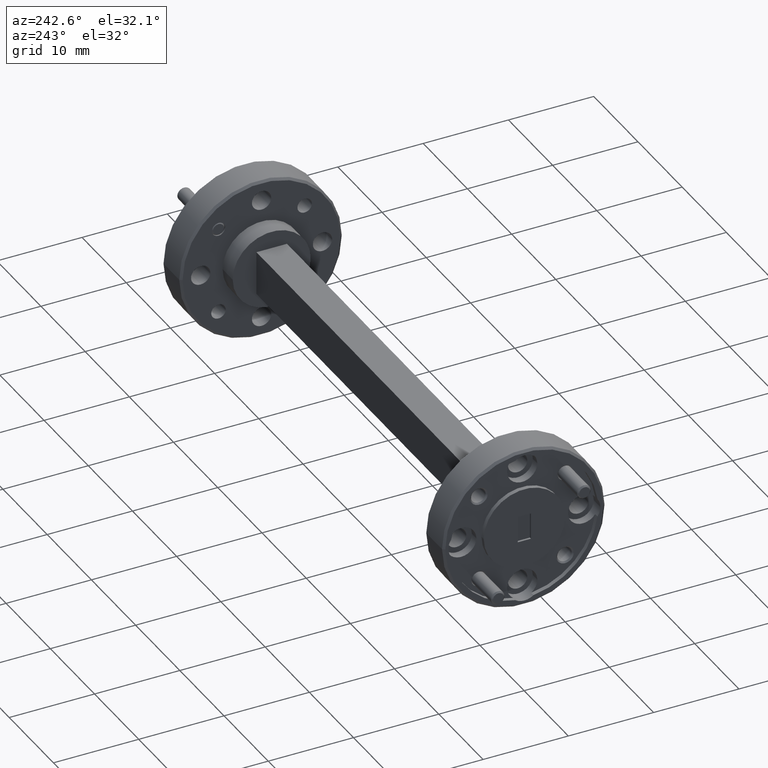
[diagram: clean part render]
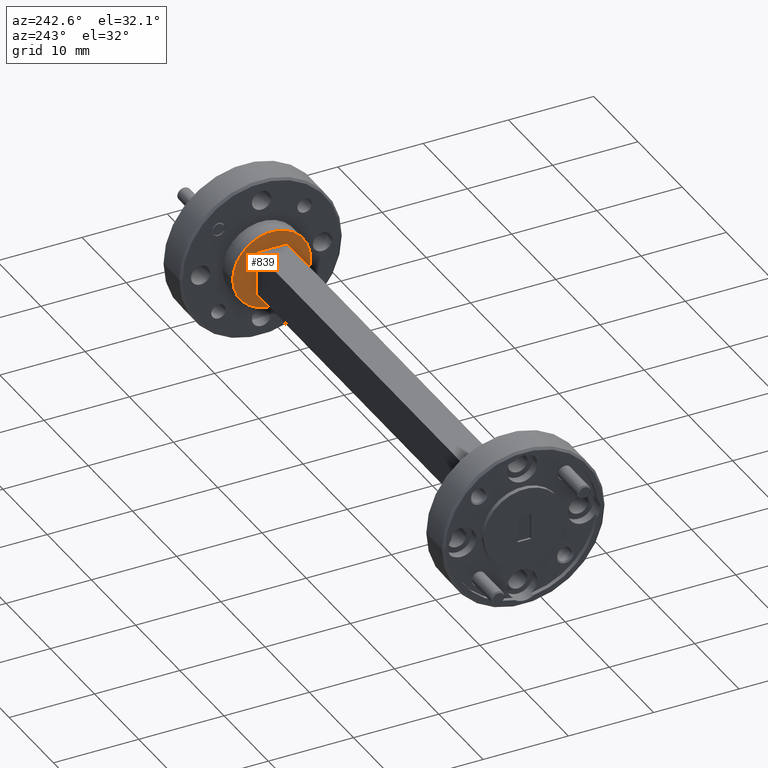
[diagram: same view with one face highlighted and labeled with its STEP entity id]
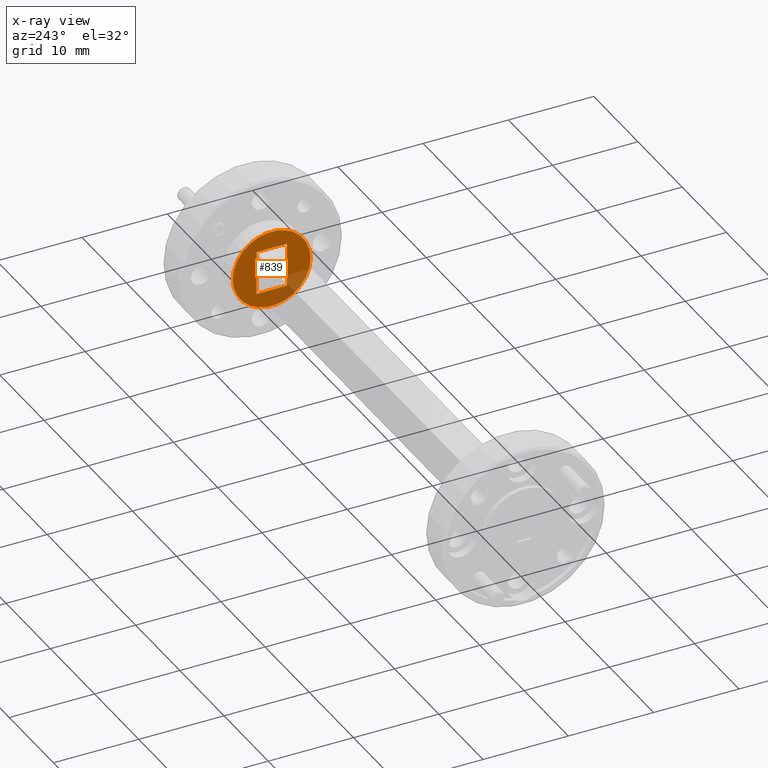
[diagram: x-ray of the same camera — body ghosted, the highlighted face saturated]
A machine part, auxiliary view. The second image highlights one B-rep face of the part: STEP entity #839.
The next image is the same camera in x-ray: the body ghosted, the highlighted face saturated — about 13% of this face is hidden behind the body in this view.
In plain terms, the highlighted planar face has unit normal (1, 0, -0).
Its self-contained STEP definition (entity closure, byte-faithful):
#75 = FACE_OUTER_BOUND ( 'NONE', #2577, .T. ) ;
#97 = DIRECTION ( 'NONE',  ( 0.000000000000000000, 0.000000000000000000, -1.000000000000000000 ) ) ;
#463 = VERTEX_POINT ( 'NONE', #4271 ) ;
#683 = CARTESIAN_POINT ( 'NONE',  ( 1.591945884671743139, 1.715015889200941057, 2.704611598569149677 ) ) ;
#795 = VERTEX_POINT ( 'NONE', #2943 ) ;
#839 = ADVANCED_FACE ( 'NONE', ( #3456, #75 ), #2901, .F. ) ;
#997 = CARTESIAN_POINT ( 'NONE',  ( 1.591945884671743139, 2.019515889200941050, 2.783611598569149415 ) ) ;
#1102 = CARTESIAN_POINT ( 'NONE',  ( 1.591945884671743139, 2.160515889200941064, 2.985611598569148928 ) ) ;
#1179 = LINE ( 'NONE', #6971, #1616 ) ;
#1509 = DIRECTION ( 'NONE',  ( 0.000000000000000000, 0.000000000000000000, -1.000000000000000000 ) ) ;
#1541 = CARTESIAN_POINT ( 'NONE',  ( 1.591945884671743139, 2.019515889200941050, 3.114611598569149375 ) ) ;
#1548 = DIRECTION ( 'NONE',  ( -0.000000000000000000, 1.000000000000000000, -0.000000000000000000 ) ) ;
#1616 = VECTOR ( 'NONE', #97, 39.37007874015748143 ) ;
#1648 = CARTESIAN_POINT ( 'NONE',  ( 1.591945884671743139, 1.715015889200941057, 2.985611598569148928 ) ) ;
#1714 = ORIENTED_EDGE ( 'NONE', *, *, #5889, .T. ) ;
#1880 = DIRECTION ( 'NONE',  ( 0.000000000000000000, 0.000000000000000000, -1.000000000000000000 ) ) ;
#2115 = AXIS2_PLACEMENT_3D ( 'NONE', #3621, #2530, #1880 ) ;
#2124 = CARTESIAN_POINT ( 'NONE',  ( 1.591945884671743139, 1.715015889200941057, 2.783611598569149415 ) ) ;
#2303 = DIRECTION ( 'NONE',  ( -0.000000000000000000, 0.000000000000000000, -1.000000000000000000 ) ) ;
#2375 = ORIENTED_EDGE ( 'NONE', *, *, #4557, .T. ) ;
#2523 = DIRECTION ( 'NONE',  ( -1.000000000000000000, -0.000000000000000000, 0.000000000000000000 ) ) ;
#2530 = DIRECTION ( 'NONE',  ( -1.000000000000000000, -0.000000000000000000, 0.000000000000000000 ) ) ;
#2577 = EDGE_LOOP ( 'NONE', ( #1714, #3345 ) ) ;
#2808 = EDGE_CURVE ( 'NONE', #6247, #463, #5039, .T. ) ;
#2901 = PLANE ( 'NONE',  #3499 ) ;
#2943 = CARTESIAN_POINT ( 'NONE',  ( 1.591945884671743139, 2.019515889200941050, 2.985611598569148928 ) ) ;
#3034 = ORIENTED_EDGE ( 'NONE', *, *, #4956, .F. ) ;
#3177 = VERTEX_POINT ( 'NONE', #3771 ) ;
#3246 = EDGE_CURVE ( 'NONE', #795, #3944, #5008, .T. ) ;
#3345 = ORIENTED_EDGE ( 'NONE', *, *, #2808, .T. ) ;
#3375 = EDGE_CURVE ( 'NONE', #795, #4988, #6840, .T. ) ;
#3456 = FACE_BOUND ( 'NONE', #5131, .T. ) ;
#3499 = AXIS2_PLACEMENT_3D ( 'NONE', #683, #5220, #2303 ) ;
#3621 = CARTESIAN_POINT ( 'NONE',  ( 1.591945884671743139, 2.090015889200941057, 2.884611598569149393 ) ) ;
#3652 = CARTESIAN_POINT ( 'NONE',  ( 1.591945884671743139, 2.090015889200941057, 2.884611598569149393 ) ) ;
#3656 = CIRCLE ( 'NONE', #7282, 0.1799999999999997158 ) ;
#3771 = CARTESIAN_POINT ( 'NONE',  ( 1.591945884671743139, 2.160515889200941064, 2.783611598569149415 ) ) ;
#3777 = ORIENTED_EDGE ( 'NONE', *, *, #3246, .T. ) ;
#3923 = CARTESIAN_POINT ( 'NONE',  ( 1.591945884671743139, 1.910015889200941563, 2.884611598569149393 ) ) ;
#3931 = DIRECTION ( 'NONE',  ( -0.000000000000000000, 1.000000000000000000, -0.000000000000000000 ) ) ;
#3944 = VERTEX_POINT ( 'NONE', #997 ) ;
#4233 = VECTOR ( 'NONE', #1509, 39.37007874015748143 ) ;
#4271 = CARTESIAN_POINT ( 'NONE',  ( 1.591945884671743139, 2.270015889200940773, 2.884611598569149393 ) ) ;
#4557 = EDGE_CURVE ( 'NONE', #3944, #3177, #5556, .T. ) ;
#4956 = EDGE_CURVE ( 'NONE', #4988, #3177, #1179, .T. ) ;
#4988 = VERTEX_POINT ( 'NONE', #1102 ) ;
#5008 = LINE ( 'NONE', #1541, #4233 ) ;
#5039 = CIRCLE ( 'NONE', #2115, 0.1799999999999997158 ) ;
#5131 = EDGE_LOOP ( 'NONE', ( #3777, #2375, #3034, #6120 ) ) ;
#5220 = DIRECTION ( 'NONE',  ( 1.000000000000000000, 0.000000000000000000, -0.000000000000000000 ) ) ;
#5404 = DIRECTION ( 'NONE',  ( 0.000000000000000000, 0.000000000000000000, -1.000000000000000000 ) ) ;
#5556 = LINE ( 'NONE', #2124, #6439 ) ;
#5665 = VECTOR ( 'NONE', #3931, 39.37007874015748143 ) ;
#5889 = EDGE_CURVE ( 'NONE', #463, #6247, #3656, .T. ) ;
#6120 = ORIENTED_EDGE ( 'NONE', *, *, #3375, .F. ) ;
#6247 = VERTEX_POINT ( 'NONE', #3923 ) ;
#6439 = VECTOR ( 'NONE', #1548, 39.37007874015748143 ) ;
#6840 = LINE ( 'NONE', #1648, #5665 ) ;
#6971 = CARTESIAN_POINT ( 'NONE',  ( 1.591945884671743139, 2.160515889200941064, 3.114611598569149375 ) ) ;
#7282 = AXIS2_PLACEMENT_3D ( 'NONE', #3652, #2523, #5404 ) ;